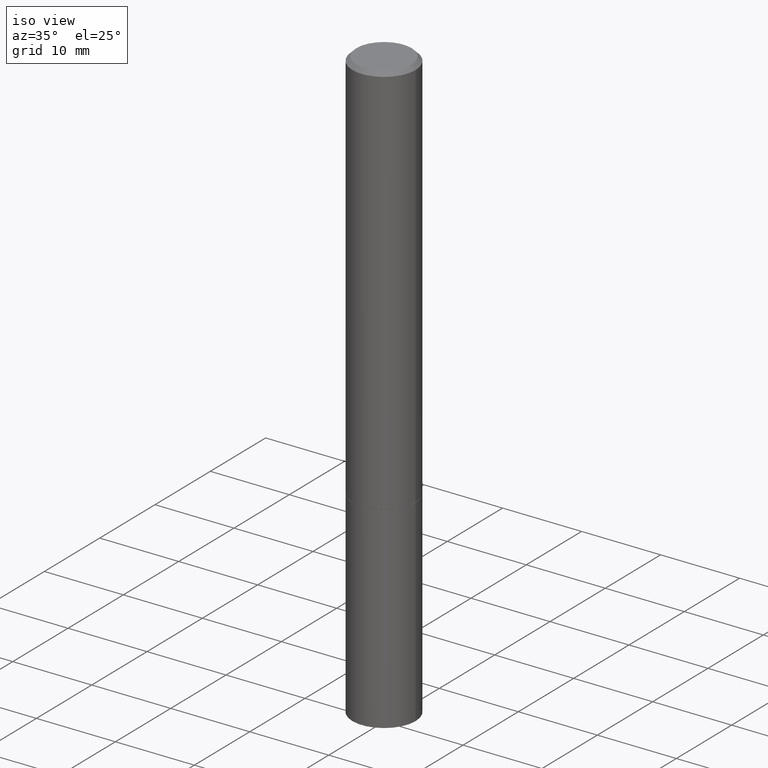
[diagram: clean part render]
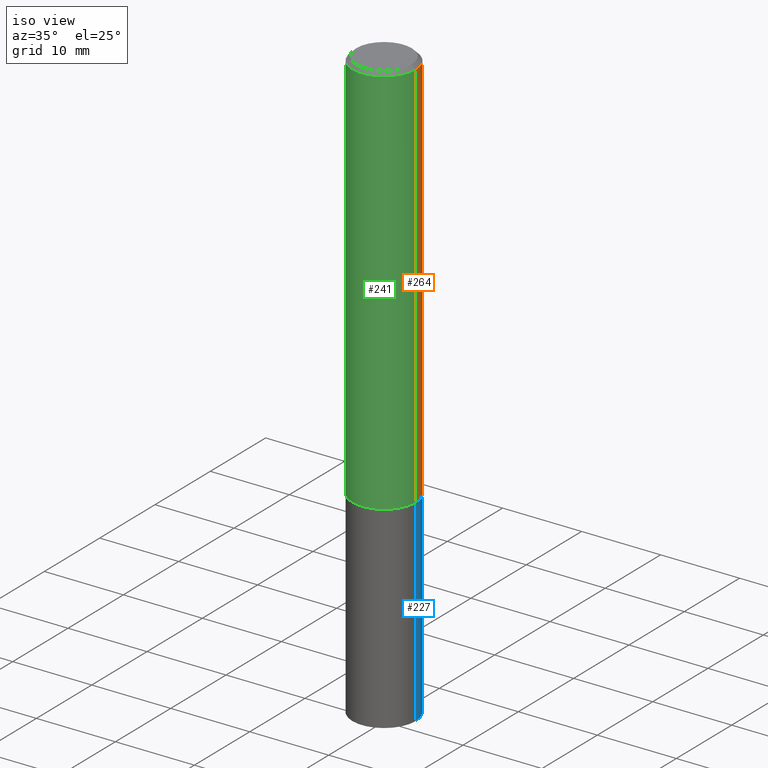
[diagram: same view with three faces highlighted in distinct colors, each labeled with its STEP entity id]
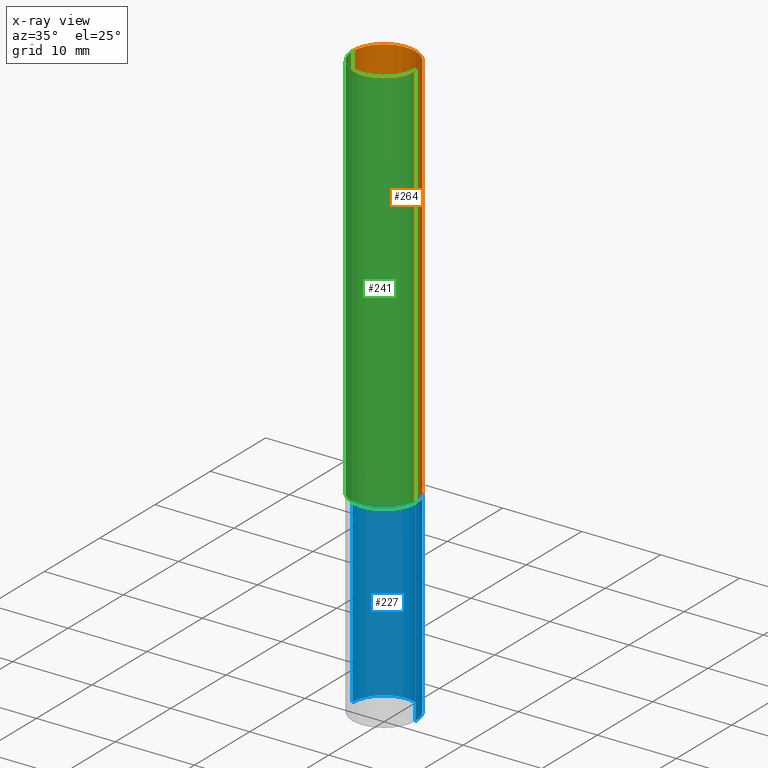
[diagram: x-ray of the same camera — body ghosted, the three highlighted faces saturated]
A machine part, iso view with three faces highlighted in distinct colors.
The next image is the same camera in x-ray (body ghosted, the three faces saturated) — at least one of them is partly hidden behind the body in this view.
Their STEP definitions:

[orange] entity #264 — the highlighted cylindrical surface (partial cylindrical patch) has radius 4.0005 mm, axis along (-0, 0, 1).
#3 = EDGE_CURVE ( 'NONE', #22, #167, #156, .T. ) ;
#18 = ORIENTED_EDGE ( 'NONE', *, *, #87, .F. ) ;
#19 = DIRECTION ( 'NONE',  ( 1.000000000000000000, -6.982962677686266711E-15, 4.876176775795935793E-29 ) ) ;
#21 = CYLINDRICAL_SURFACE ( 'NONE', #266, 0.1574999999999998901 ) ;
#22 = VERTEX_POINT ( 'NONE', #131 ) ;
#53 = VECTOR ( 'NONE', #114, 39.37007874015748143 ) ;
#68 = CARTESIAN_POINT ( 'NONE',  ( 0.1575000000000000011, -7.969306155909475391E-15, -1.967499999999999805 ) ) ;
#70 = DIRECTION ( 'NONE',  ( -2.445468806185136597E-29, 3.491481338843145583E-15, 1.000000000000000000 ) ) ;
#84 = CARTESIAN_POINT ( 'NONE',  ( 4.811459876169255671E-29, -6.869489534173887122E-15, -1.967499999999999805 ) ) ;
#86 = AXIS2_PLACEMENT_3D ( 'NONE', #84, #344, #315 ) ;
#87 = EDGE_CURVE ( 'NONE', #260, #22, #150, .T. ) ;
#96 = CARTESIAN_POINT ( 'NONE',  ( -0.1575000000000000011, -2.350554771653214846E-15, -1.967499999999999805 ) ) ;
#114 = DIRECTION ( 'NONE',  ( -2.445468806185136877E-29, 3.491481338843145188E-15, 1.000000000000000000 ) ) ;
#123 = CARTESIAN_POINT ( 'NONE',  ( 0.000000000000000000, 0.000000000000000000, 0.000000000000000000 ) ) ;
#129 = DIRECTION ( 'NONE',  ( -2.445468806185136877E-29, 3.491481338843145188E-15, 1.000000000000000000 ) ) ;
#131 = CARTESIAN_POINT ( 'NONE',  ( 0.1574999999999998346, -1.150358061425878091E-15, -0.02000000000000003164 ) ) ;
#150 = LINE ( 'NONE', #208, #53 ) ;
#156 = CIRCLE ( 'NONE', #289, 0.1574999999999998346 ) ;
#167 = VERTEX_POINT ( 'NONE', #262 ) ;
#189 = ORIENTED_EDGE ( 'NONE', *, *, #3, .F. ) ;
#192 = EDGE_CURVE ( 'NONE', #260, #246, #212, .T. ) ;
#202 = ORIENTED_EDGE ( 'NONE', *, *, #192, .T. ) ;
#208 = CARTESIAN_POINT ( 'NONE',  ( 0.1574999999999998901, -1.099816621735586297E-15, 7.679978421878593829E-30 ) ) ;
#212 = CIRCLE ( 'NONE', #86, 0.1575000000000000011 ) ;
#219 = CARTESIAN_POINT ( 'NONE',  ( 4.890937612370280165E-31, -6.982962677686301470E-17, -0.02000000000000003164 ) ) ;
#221 = DIRECTION ( 'NONE',  ( 1.000000000000000000, -6.982962677686265922E-15, 0.000000000000000000 ) ) ;
#246 = VERTEX_POINT ( 'NONE', #96 ) ;
#260 = VERTEX_POINT ( 'NONE', #68 ) ;
#262 = CARTESIAN_POINT ( 'NONE',  ( -0.1574999999999998346, 1.029986994958722802E-15, -0.02000000000000003164 ) ) ;
#264 = ADVANCED_FACE ( 'NONE', ( #325 ), #21, .T. ) ;
#266 = AXIS2_PLACEMENT_3D ( 'NONE', #123, #70, #19 ) ;
#272 = DIRECTION ( 'NONE',  ( -2.445468806185136597E-29, 3.491481338843145583E-15, 1.000000000000000000 ) ) ;
#273 = CARTESIAN_POINT ( 'NONE',  ( -0.1574999999999998901, 1.119104808822157012E-15, -7.747322767151471379E-30 ) ) ;
#287 = ORIENTED_EDGE ( 'NONE', *, *, #291, .T. ) ;
#289 = AXIS2_PLACEMENT_3D ( 'NONE', #219, #272, #221 ) ;
#291 = EDGE_CURVE ( 'NONE', #246, #167, #300, .T. ) ;
#300 = LINE ( 'NONE', #273, #317 ) ;
#315 = DIRECTION ( 'NONE',  ( 1.000000000000000000, -6.982962677686268288E-15, 0.000000000000000000 ) ) ;
#317 = VECTOR ( 'NONE', #129, 39.37007874015748143 ) ;
#325 = FACE_OUTER_BOUND ( 'NONE', #358, .T. ) ;
#344 = DIRECTION ( 'NONE',  ( -2.445468806185136597E-29, 3.491481338843145583E-15, 1.000000000000000000 ) ) ;
#358 = EDGE_LOOP ( 'NONE', ( #202, #287, #189, #18 ) ) ;

[blue] entity #227 — the highlighted cylindrical surface (partial cylindrical patch) has radius 4.0005 mm, axis along (-0, 0, 1).
#1 = EDGE_LOOP ( 'NONE', ( #81, #8, #144, #278 ) ) ;
#4 = LINE ( 'NONE', #183, #116 ) ;
#8 = ORIENTED_EDGE ( 'NONE', *, *, #31, .T. ) ;
#9 = CIRCLE ( 'NONE', #283, 0.1575000000000000011 ) ;
#24 = LINE ( 'NONE', #355, #223 ) ;
#31 = EDGE_CURVE ( 'NONE', #191, #97, #24, .T. ) ;
#47 = AXIS2_PLACEMENT_3D ( 'NONE', #190, #186, #187 ) ;
#52 = DIRECTION ( 'NONE',  ( 1.000000000000000000, -6.982962677686261977E-15, 0.000000000000000000 ) ) ;
#55 = EDGE_CURVE ( 'NONE', #313, #191, #9, .T. ) ;
#79 = CARTESIAN_POINT ( 'NONE',  ( 7.220980290903470182E-29, -1.030964609733603853E-14, -2.952799999999999869 ) ) ;
#81 = ORIENTED_EDGE ( 'NONE', *, *, #55, .T. ) ;
#85 = CARTESIAN_POINT ( 'NONE',  ( -0.1575000000000000011, -7.472208747602227514E-15, -1.968499999999999694 ) ) ;
#97 = VERTEX_POINT ( 'NONE', #85 ) ;
#116 = VECTOR ( 'NONE', #341, 39.37007874015748143 ) ;
#121 = EDGE_CURVE ( 'NONE', #313, #320, #4, .T. ) ;
#132 = CARTESIAN_POINT ( 'NONE',  ( 0.1575000000000000011, -1.140946271907162522E-14, -2.952799999999999869 ) ) ;
#137 = DIRECTION ( 'NONE',  ( -2.445468806185136877E-29, 3.491481338843145188E-15, 1.000000000000000000 ) ) ;
#141 = CIRCLE ( 'NONE', #47, 0.1575000000000000011 ) ;
#144 = ORIENTED_EDGE ( 'NONE', *, *, #305, .F. ) ;
#153 = CARTESIAN_POINT ( 'NONE',  ( 0.000000000000000000, 0.000000000000000000, 0.000000000000000000 ) ) ;
#159 = FACE_OUTER_BOUND ( 'NONE', #1, .T. ) ;
#180 = AXIS2_PLACEMENT_3D ( 'NONE', #153, #232, #268 ) ;
#182 = CYLINDRICAL_SURFACE ( 'NONE', #180, 0.1575000000000000011 ) ;
#183 = CARTESIAN_POINT ( 'NONE',  ( 0.1575000000000000011, -1.099816621735586889E-15, 7.679978421878598033E-30 ) ) ;
#186 = DIRECTION ( 'NONE',  ( -2.445468806185136597E-29, 3.491481338843145583E-15, 1.000000000000000000 ) ) ;
#187 = DIRECTION ( 'NONE',  ( 1.000000000000000000, -6.982962677686268288E-15, 0.000000000000000000 ) ) ;
#190 = CARTESIAN_POINT ( 'NONE',  ( 4.813905344975440714E-29, -6.872981015512730918E-15, -1.968499999999999694 ) ) ;
#191 = VERTEX_POINT ( 'NONE', #205 ) ;
#200 = DIRECTION ( 'NONE',  ( -2.445468806185136597E-29, 3.491481338843145583E-15, 1.000000000000000000 ) ) ;
#205 = CARTESIAN_POINT ( 'NONE',  ( -0.1575000000000000011, -7.472208747602227514E-15, -2.952799999999999869 ) ) ;
#223 = VECTOR ( 'NONE', #137, 39.37007874015748143 ) ;
#227 = ADVANCED_FACE ( 'NONE', ( #159 ), #182, .T. ) ;
#232 = DIRECTION ( 'NONE',  ( -2.445468806185136597E-29, 3.491481338843145583E-15, 1.000000000000000000 ) ) ;
#247 = CARTESIAN_POINT ( 'NONE',  ( 0.1575000000000000011, -7.972797637248318399E-15, -1.968499999999999694 ) ) ;
#268 = DIRECTION ( 'NONE',  ( 1.000000000000000000, -6.982962677686265922E-15, 4.876176775795935232E-29 ) ) ;
#278 = ORIENTED_EDGE ( 'NONE', *, *, #121, .F. ) ;
#283 = AXIS2_PLACEMENT_3D ( 'NONE', #79, #200, #52 ) ;
#305 = EDGE_CURVE ( 'NONE', #320, #97, #141, .T. ) ;
#313 = VERTEX_POINT ( 'NONE', #132 ) ;
#320 = VERTEX_POINT ( 'NONE', #247 ) ;
#341 = DIRECTION ( 'NONE',  ( -2.445468806185136877E-29, 3.491481338843145188E-15, 1.000000000000000000 ) ) ;
#355 = CARTESIAN_POINT ( 'NONE',  ( -0.1575000000000000011, 1.119104808822157801E-15, -7.747322767151475583E-30 ) ) ;

[green] entity #241 — the highlighted cylindrical surface (partial cylindrical patch) has radius 4.0005 mm, axis along (-0, 0, 1).
#12 = DIRECTION ( 'NONE',  ( 1.000000000000000000, -6.982962677686266711E-15, 4.876176775795935793E-29 ) ) ;
#15 = CIRCLE ( 'NONE', #345, 0.1575000000000000011 ) ;
#22 = VERTEX_POINT ( 'NONE', #131 ) ;
#32 = FACE_OUTER_BOUND ( 'NONE', #275, .T. ) ;
#49 = AXIS2_PLACEMENT_3D ( 'NONE', #316, #271, #12 ) ;
#53 = VECTOR ( 'NONE', #114, 39.37007874015748143 ) ;
#58 = DIRECTION ( 'NONE',  ( 1.000000000000000000, -6.982962677686265922E-15, 0.000000000000000000 ) ) ;
#62 = EDGE_CURVE ( 'NONE', #167, #22, #188, .T. ) ;
#68 = CARTESIAN_POINT ( 'NONE',  ( 0.1575000000000000011, -7.969306155909475391E-15, -1.967499999999999805 ) ) ;
#87 = EDGE_CURVE ( 'NONE', #260, #22, #150, .T. ) ;
#92 = ORIENTED_EDGE ( 'NONE', *, *, #87, .T. ) ;
#96 = CARTESIAN_POINT ( 'NONE',  ( -0.1575000000000000011, -2.350554771653214846E-15, -1.967499999999999805 ) ) ;
#114 = DIRECTION ( 'NONE',  ( -2.445468806185136877E-29, 3.491481338843145188E-15, 1.000000000000000000 ) ) ;
#115 = DIRECTION ( 'NONE',  ( -2.445468806185136597E-29, 3.491481338843145583E-15, 1.000000000000000000 ) ) ;
#129 = DIRECTION ( 'NONE',  ( -2.445468806185136877E-29, 3.491481338843145188E-15, 1.000000000000000000 ) ) ;
#131 = CARTESIAN_POINT ( 'NONE',  ( 0.1574999999999998346, -1.150358061425878091E-15, -0.02000000000000003164 ) ) ;
#147 = DIRECTION ( 'NONE',  ( -2.445468806185136597E-29, 3.491481338843145583E-15, 1.000000000000000000 ) ) ;
#150 = LINE ( 'NONE', #208, #53 ) ;
#167 = VERTEX_POINT ( 'NONE', #262 ) ;
#178 = ORIENTED_EDGE ( 'NONE', *, *, #62, .F. ) ;
#188 = CIRCLE ( 'NONE', #326, 0.1574999999999998346 ) ;
#203 = DIRECTION ( 'NONE',  ( 1.000000000000000000, -6.982962677686268288E-15, 0.000000000000000000 ) ) ;
#208 = CARTESIAN_POINT ( 'NONE',  ( 0.1574999999999998901, -1.099816621735586297E-15, 7.679978421878593829E-30 ) ) ;
#231 = EDGE_CURVE ( 'NONE', #246, #260, #15, .T. ) ;
#241 = ADVANCED_FACE ( 'NONE', ( #32 ), #343, .T. ) ;
#246 = VERTEX_POINT ( 'NONE', #96 ) ;
#258 = ORIENTED_EDGE ( 'NONE', *, *, #231, .T. ) ;
#260 = VERTEX_POINT ( 'NONE', #68 ) ;
#262 = CARTESIAN_POINT ( 'NONE',  ( -0.1574999999999998346, 1.029986994958722802E-15, -0.02000000000000003164 ) ) ;
#265 = CARTESIAN_POINT ( 'NONE',  ( 4.811459876169255671E-29, -6.869489534173887122E-15, -1.967499999999999805 ) ) ;
#271 = DIRECTION ( 'NONE',  ( -2.445468806185136597E-29, 3.491481338843145583E-15, 1.000000000000000000 ) ) ;
#273 = CARTESIAN_POINT ( 'NONE',  ( -0.1574999999999998901, 1.119104808822157012E-15, -7.747322767151471379E-30 ) ) ;
#275 = EDGE_LOOP ( 'NONE', ( #324, #258, #92, #178 ) ) ;
#286 = CARTESIAN_POINT ( 'NONE',  ( 4.890937612370280165E-31, -6.982962677686301470E-17, -0.02000000000000003164 ) ) ;
#291 = EDGE_CURVE ( 'NONE', #246, #167, #300, .T. ) ;
#300 = LINE ( 'NONE', #273, #317 ) ;
#316 = CARTESIAN_POINT ( 'NONE',  ( 0.000000000000000000, 0.000000000000000000, 0.000000000000000000 ) ) ;
#317 = VECTOR ( 'NONE', #129, 39.37007874015748143 ) ;
#324 = ORIENTED_EDGE ( 'NONE', *, *, #291, .F. ) ;
#326 = AXIS2_PLACEMENT_3D ( 'NONE', #286, #147, #58 ) ;
#343 = CYLINDRICAL_SURFACE ( 'NONE', #49, 0.1574999999999998901 ) ;
#345 = AXIS2_PLACEMENT_3D ( 'NONE', #265, #115, #203 ) ;